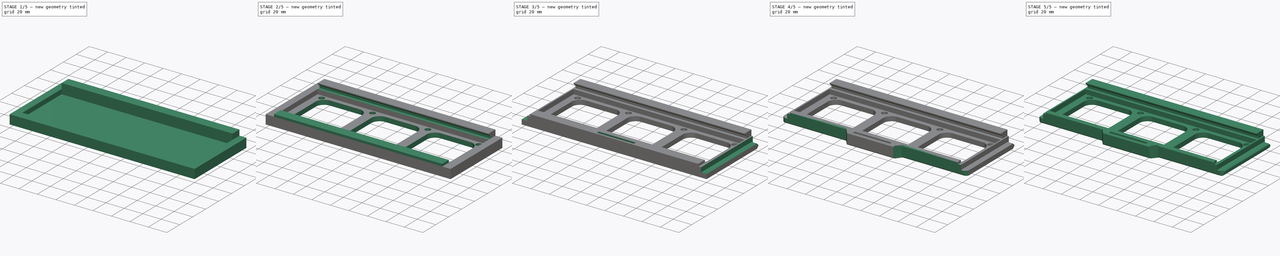
[diagram: build sequence overview — one tinted view per stage of 5, left to right]
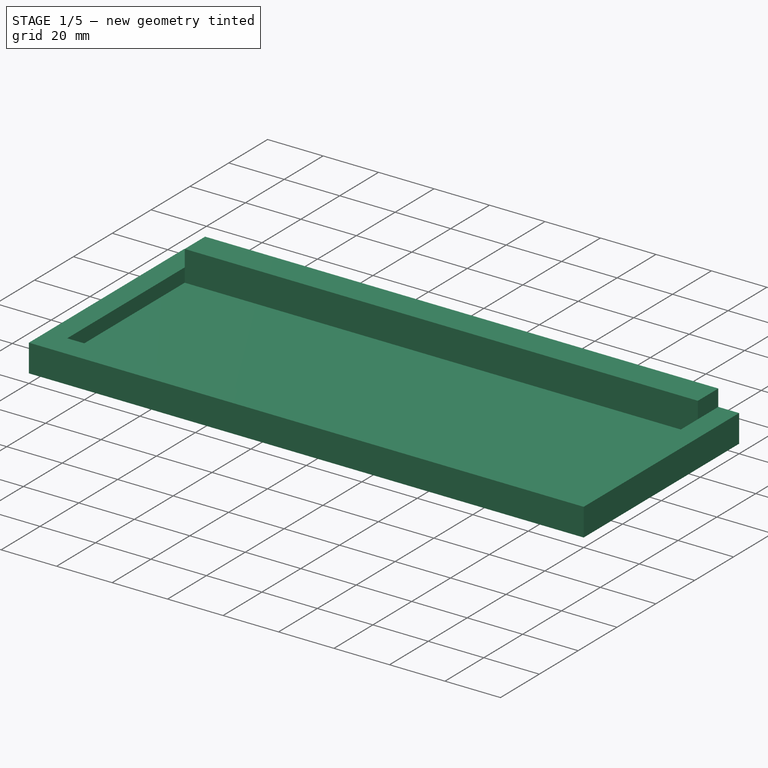
[diagram: stage 1 of 5 — iso view after this stage's code; geometry added in this stage tinted green]
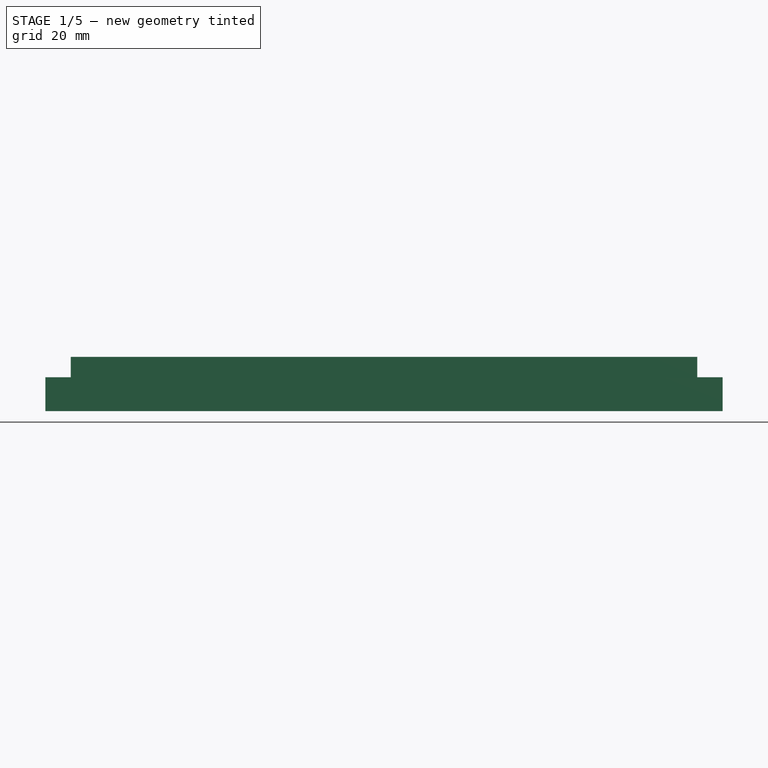
[diagram: stage 1 of 5 — front view after this stage's code; geometry added in this stage tinted green]
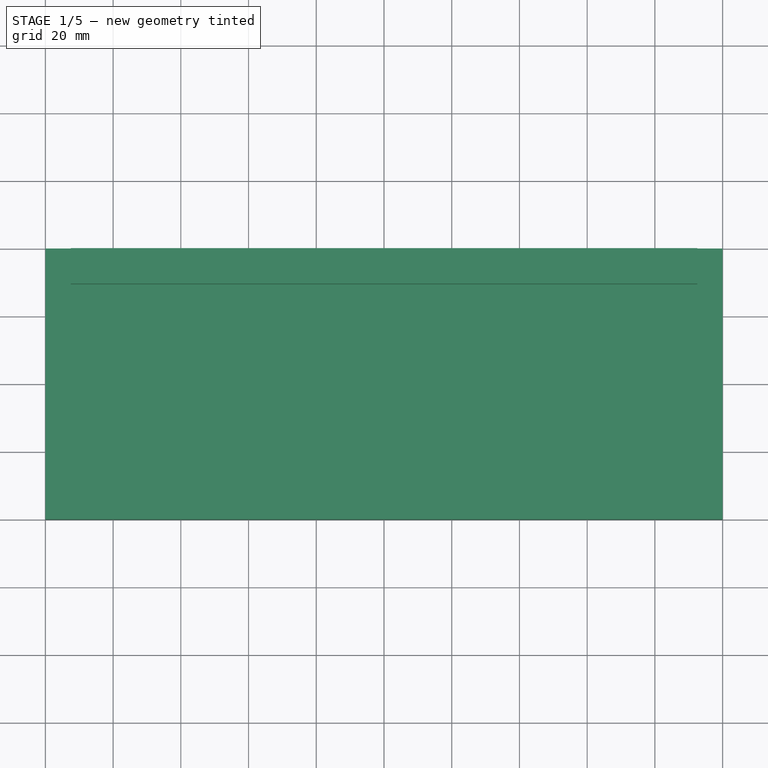
[diagram: stage 1 of 5 — top view after this stage's code; geometry added in this stage tinted green]
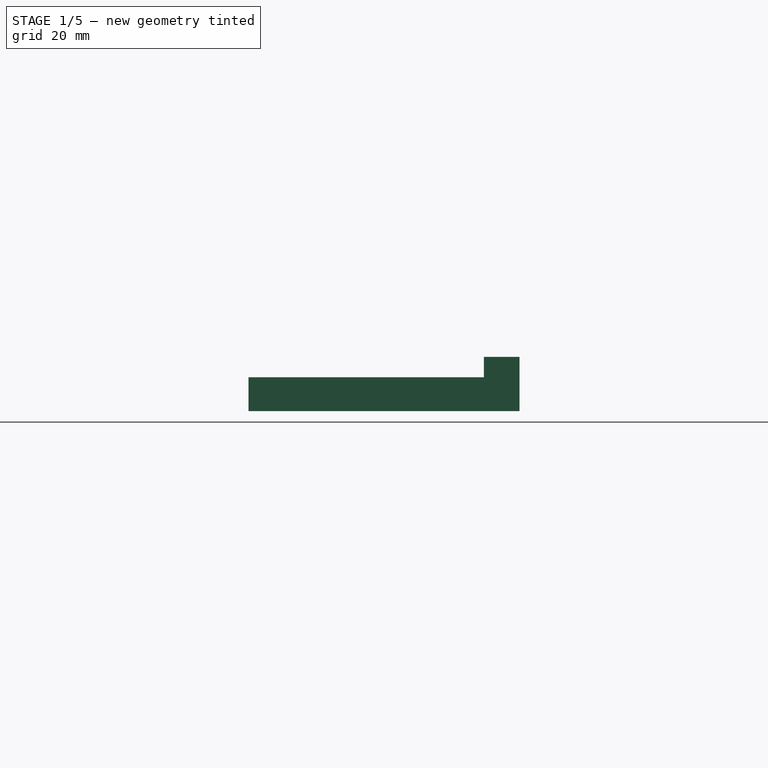
[diagram: stage 1 of 5 — right view after this stage's code; geometry added in this stage tinted green]
FCSTD DOCUMENT  (FreeCAD 1.0R39109 (Git))
Label: case rack v2
License: All rights reserved
objects: Sketcher::SketchObject×10, PartDesign::Chamfer×7, PartDesign::Pocket×6, PartDesign::Pad×4, PartDesign::Body×1
note: 72 computed .brp shape members not serialized (recipe doc carries the construction recipe); baked Part::Feature solids carry a one-line shape summary decoded from their .brp

FEATURE [Sketcher::SketchObject] Sketch
  ArcFitTolerance = 1e-06
  AttachmentSupport = -> [XY_Plane]
  FullyConstrained = true
  MakeInternals = false
  MapMode = 5
  sketch-geometry (4):
    g0: LineSegment StartX=-100 StartY=40 StartZ=0 EndX=-100 EndY=-40 EndZ=0
    g1: LineSegment StartX=-100 StartY=-40 StartZ=0 EndX=100 EndY=-40 EndZ=0
    g2: LineSegment StartX=100 StartY=-40 StartZ=0 EndX=100 EndY=40 EndZ=0
    g3: LineSegment StartX=100 StartY=40 StartZ=0 EndX=-100 EndY=40 EndZ=0
  constraints (10):
    c: Coincident(g0,g1)
    c: Coincident(g1,g2)
    c: Coincident(g2,g3)
    c: Coincident(g3,g0)
    c: Vertical(g2)
    c: Horizontal(g1)
    c: Symmetric(g0,g0,g-1)
    c: DistanceY(g0,g0) = 80
    c: DistanceX(g3,g3) = 200
    c: Symmetric(g0,g2,g-2)
FEATURE [PartDesign::Pad] Pad
  Direction = (0,0,1)
  Length = 5
  Length2 = 10
  Profile = -> Sketch
  ReferenceAxis = -> Sketch [N_Axis]
  Refine = true
  Suppressed = false
  Type = 0
FEATURE [Sketcher::SketchObject] Sketch001
  ArcFitTolerance = 1e-06
  AttachmentSupport = -> [Pad]
  ExternalGeometry = -> [Pad]
  FullyConstrained = true
  MakeInternals = false
  MapMode = 5
  Placement = pos=(0,0,5) rot=(0,0,1;0rad)
  sketch-geometry (8):
    g0: LineSegment StartX=-92.5 StartY=29.5 StartZ=0 EndX=92.5 EndY=29.5 EndZ=0
    g1: LineSegment StartX=100 StartY=40 StartZ=0 EndX=-100 EndY=40 EndZ=0
    g2: LineSegment StartX=-100 StartY=-40 StartZ=0 EndX=100 EndY=-40 EndZ=0
    g3: LineSegment StartX=92.5 StartY=-31 StartZ=0 EndX=-92.5 EndY=-31 EndZ=0
    g4: LineSegment StartX=92.5 StartY=29.5 StartZ=0 EndX=92.5 EndY=-31 EndZ=0
    g5: LineSegment StartX=-92.5 StartY=-31 StartZ=0 EndX=-92.5 EndY=29.5 EndZ=0
    g6: LineSegment StartX=-100 StartY=40 StartZ=0 EndX=-100 EndY=-40 EndZ=0
    g7: LineSegment StartX=100 StartY=40 StartZ=0 EndX=100 EndY=-40 EndZ=0
  constraints (19):
    c: Horizontal(g3)
    c: Vertical(g4)
    c: Coincident(g0,g5)
    c: Coincident(g3,g5)
    c: Coincident(g0,g4)
    c: Coincident(g3,g4)
    c: Coincident(g2,g7)
    c: Coincident(g2,g-4)
    c: Coincident(g1,g7)
    c: Coincident(g1,g-3)
    c: Coincident(g1,g6)
    c: Coincident(g1,g-3)
    c: Coincident(g2,g6)
    c: Coincident(g2,g-4)
    c: Symmetric(g0,g0,g-2)
    c: DistanceY(g5,g5) = 60.5
    c: DistanceX(g0,g0) = 185
    c: DistanceY(g2,g3) = 9
    c: Vertical(g5)
FEATURE [PartDesign::Pad] Pad001
  BaseFeature = -> Pad
  Direction = (0,0,1)
  Length = 5
  Length2 = 10
  Profile = -> Sketch001
  ReferenceAxis = -> Sketch001 [N_Axis]
  Refine = true
  Suppressed = false
  Type = 0
FEATURE [Sketcher::SketchObject] Sketch002
  ArcFitTolerance = 1e-06
  AttachmentSupport = -> [Pad001]
  ExternalGeometry = -> [Pad001]
  FullyConstrained = true
  MakeInternals = false
  MapMode = 5
  Placement = pos=(0,0,10) rot=(0,0,1;0rad)
  sketch-geometry (4):
    g0: LineSegment StartX=-92.5 StartY=29.5 StartZ=0 EndX=92.5 EndY=29.5 EndZ=0
    g1: LineSegment StartX=92.5 StartY=29.5 StartZ=0 EndX=92.5 EndY=40 EndZ=0
    g2: LineSegment StartX=92.5 StartY=40 StartZ=0 EndX=-92.5 EndY=40 EndZ=0
    g3: LineSegment StartX=-92.5 StartY=40 StartZ=0 EndX=-92.5 EndY=29.5 EndZ=0
  constraints (10):
    c: Coincident(g0,g1)
    c: Coincident(g1,g2)
    c: Coincident(g2,g3)
    c: Coincident(g3,g0)
    c: Horizontal(g2)
    c: Vertical(g1)
    c: Vertical(g3)
    c: Coincident(g0,g-4)
    c: PointOnObject(g1,g-3)
    c: Coincident(g0,g-4)
FEATURE [PartDesign::Pad] Pad002
  BaseFeature = -> Pad001
  Direction = (0,0,1)
  Length = 6
  Length2 = 10
  Profile = -> Sketch002
  ReferenceAxis = -> Sketch002 [N_Axis]
  Refine = true
  Suppressed = false
  Type = 0
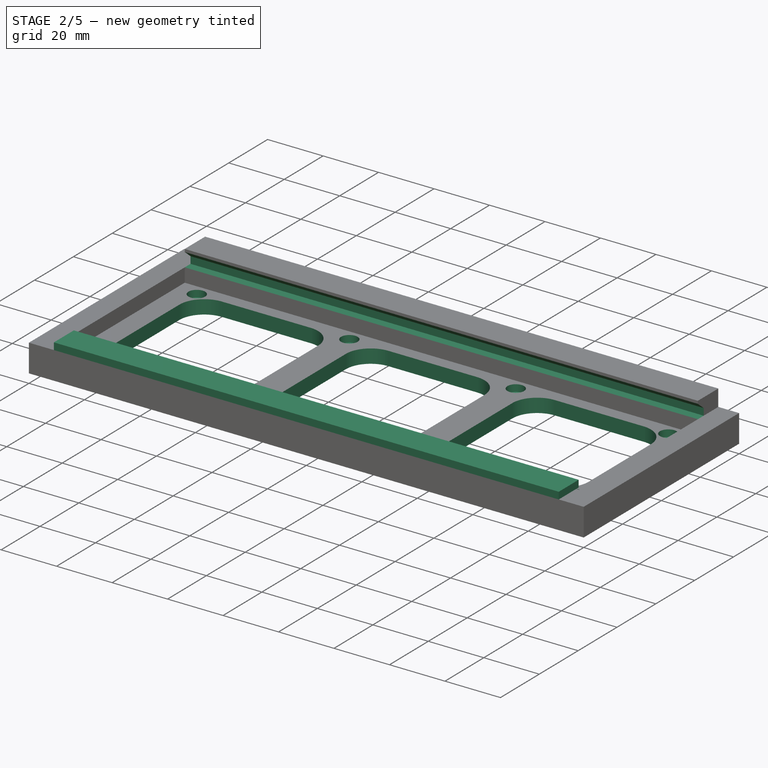
[diagram: stage 2 of 5 — iso view after this stage's code; geometry added in this stage tinted green]
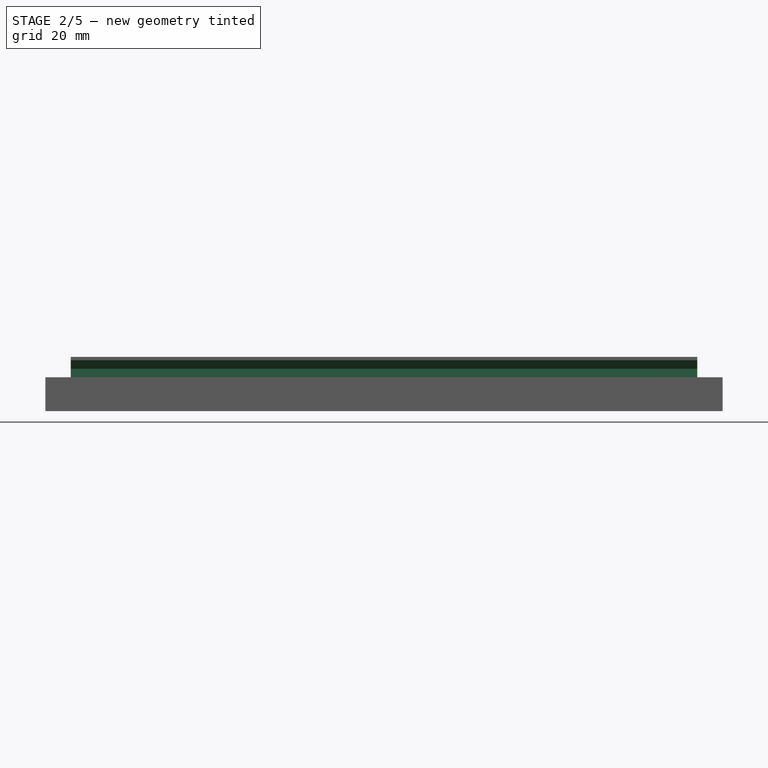
[diagram: stage 2 of 5 — front view after this stage's code; geometry added in this stage tinted green]
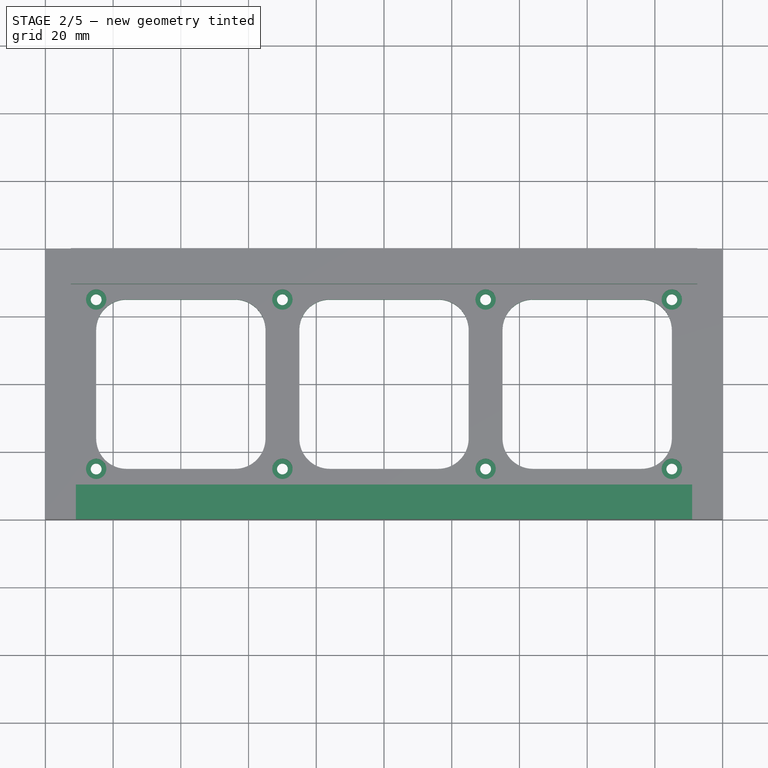
[diagram: stage 2 of 5 — top view after this stage's code; geometry added in this stage tinted green]
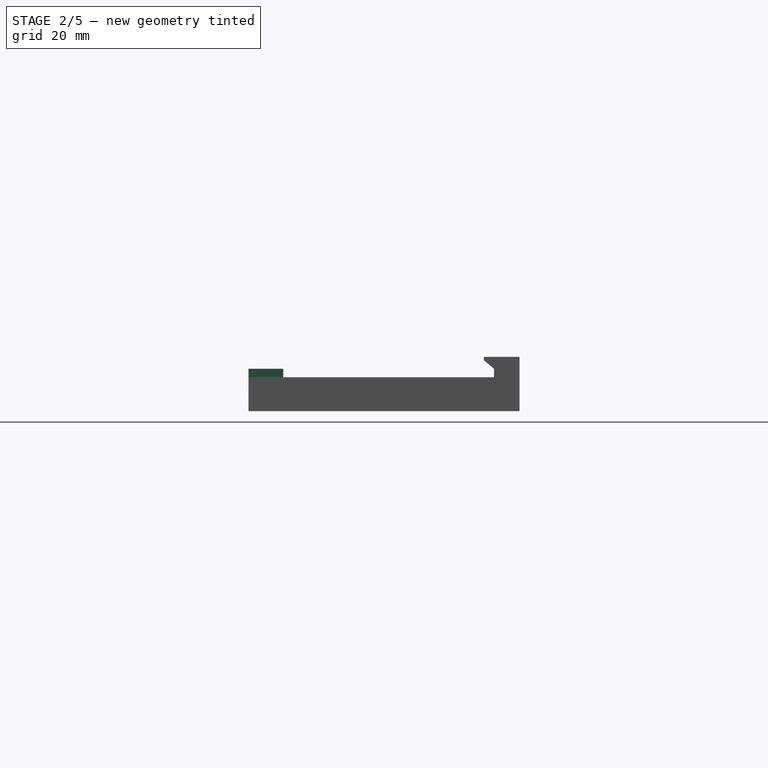
[diagram: stage 2 of 5 — right view after this stage's code; geometry added in this stage tinted green]
FEATURE [Sketcher::SketchObject] Sketch003
  ArcFitTolerance = 1e-06
  AttachmentSupport = -> [Pad002]
  ExternalGeometry = -> [Pad002]
  FullyConstrained = true
  MakeInternals = false
  MapMode = 5
  Placement = pos=(0,0,10) rot=(0,0,1;0rad)
  sketch-geometry (4):
    g0: LineSegment StartX=-91 StartY=-29.75 StartZ=0 EndX=-91 EndY=-40 EndZ=0
    g1: LineSegment StartX=-91 StartY=-40 StartZ=0 EndX=91 EndY=-40 EndZ=0
    g2: LineSegment StartX=91 StartY=-40 StartZ=0 EndX=91 EndY=-29.75 EndZ=0
    g3: LineSegment StartX=91 StartY=-29.75 StartZ=0 EndX=-91 EndY=-29.75 EndZ=0
  constraints (11):
    c: Coincident(g0,g1)
    c: Coincident(g1,g2)
    c: Coincident(g2,g3)
    c: Coincident(g3,g0)
    c: Vertical(g0)
    c: Vertical(g2)
    c: Horizontal(g1)
    c: DistanceY(g0,g0) = 10.25
    c: PointOnObject(g1,g-4)
    c: Symmetric(g0,g2,g-2)
    c: DistanceX(g3,g3) = 182
FEATURE [PartDesign::Pad] Pad003
  BaseFeature = -> Pad002
  Direction = (0,0,1)
  Length = 2.5
  Length2 = 10
  Profile = -> Sketch003
  ReferenceAxis = -> Sketch003 [N_Axis]
  Refine = true
  Suppressed = false
  Type = 0
FEATURE [Sketcher::SketchObject] Sketch004
  ArcFitTolerance = 1e-06
  AttachmentSupport = -> [Pad003]
  ExternalGeometry = -> [Pad003]
  FullyConstrained = true
  MakeInternals = false
  MapMode = 5
  Placement = pos=(-92.5,0,0) rot=(0.57735,-0.57735,-0.57735;2.0944rad)
  sketch-geometry (4):
    g0: LineSegment StartX=-32.5 StartY=12.5 StartZ=0 EndX=-32.5 EndY=10 EndZ=0
    g1: LineSegment StartX=-32.5 StartY=10 StartZ=0 EndX=-29.5 EndY=10 EndZ=0
    g2: LineSegment StartX=-29.5 StartY=10 StartZ=0 EndX=-29.5 EndY=15 EndZ=0
    g3: LineSegment StartX=-29.5 StartY=15 StartZ=0 EndX=-32.5 EndY=12.5 EndZ=0
  constraints (11):
    c: Coincident(g0,g1)
    c: Coincident(g1,g2)
    c: Coincident(g2,g3)
    c: Coincident(g3,g0)
    c: Vertical(g0)
    c: Vertical(g2)
    c: Horizontal(g1)
    c: Coincident(g1,g-3)
    c: DistanceX(g3,g3) = 3
    c: DistanceY(g0,g0) = 2.5
    c: DistanceY(g2,g2) = 5
FEATURE [PartDesign::Pocket] Pocket
  BaseFeature = -> Pad003
  Direction = (1,0,0)
  Length = 5
  Length2 = 5
  Profile = -> Sketch004
  ReferenceAxis = -> Sketch004 [N_Axis]
  Refine = true
  Suppressed = false
  Type = 1
FEATURE [Sketcher::SketchObject] Sketch005
  ArcFitTolerance = 1e-06
  AttachmentSupport = -> [Pocket]
  FullyConstrained = true
  MakeInternals = false
  MapMode = 5
  Placement = pos=(0,0,5) rot=(0,0,1;0rad)
  sketch-geometry (44):
    g0: LineSegment StartX=-25 StartY=16 StartZ=0 EndX=-25 EndY=-16 EndZ=0
    g1: LineSegment StartX=-16 StartY=-25 StartZ=0 EndX=16 EndY=-25 EndZ=0
    g2: LineSegment StartX=25 StartY=-16 StartZ=0 EndX=25 EndY=16 EndZ=0
    g3: LineSegment StartX=16 StartY=25 StartZ=0 EndX=-16 EndY=25 EndZ=0
    g4: ArcOfCircle CenterX=-16 CenterY=16 CenterZ=0 NormalX=0 NormalY=0 NormalZ=1 AngleXU=0 Radius=9 StartAngle=1.5708 EndAngle=3.14159
    g5: ArcOfCircle CenterX=-16 CenterY=-16 CenterZ=0 NormalX=0 NormalY=0 NormalZ=1 AngleXU=0 Radius=9 StartAngle=3.14159 EndAngle=4.71239
    g6: ArcOfCircle CenterX=16 CenterY=-16 CenterZ=0 NormalX=0 NormalY=0 NormalZ=1 AngleXU=0 Radius=9 StartAngle=4.71239 EndAngle=6.28319
    g7: ArcOfCircle CenterX=16 CenterY=16 CenterZ=0 NormalX=0 NormalY=0 NormalZ=1 AngleXU=0 Radius=9 StartAngle=0 EndAngle=1.5708
    g8: GeomPoint [constr] X=-25 Y=25 Z=0
    g9: GeomPoint [constr] X=25 Y=-25 Z=0
    g10: LineSegment StartX=-85 StartY=16 StartZ=0 EndX=-85 EndY=-16 EndZ=0
    g11: LineSegment StartX=-76 StartY=-25 StartZ=0 EndX=-44 EndY=-25 EndZ=0
    g12: LineSegment StartX=-35 StartY=-16 StartZ=0 EndX=-35 EndY=16 EndZ=0
    g13: LineSegment StartX=-44 StartY=25 StartZ=0 EndX=-76 EndY=25 EndZ=0
    g14: ArcOfCircle CenterX=-76 CenterY=16 CenterZ=0 NormalX=0 NormalY=0 NormalZ=1 AngleXU=0 Radius=9 StartAngle=1.5708 EndAngle=3.14159
    g15: ArcOfCircle CenterX=-76 CenterY=-16 CenterZ=0 NormalX=0 NormalY=0 NormalZ=1 AngleXU=0 Radius=9 StartAngle=3.14159 EndAngle=4.71239
    g16: ArcOfCircle CenterX=-44 CenterY=-16 CenterZ=0 NormalX=0 NormalY=0 NormalZ=1 AngleXU=0 Radius=9 StartAngle=4.71239 EndAngle=6.28319
    g17: ArcOfCircle CenterX=-44 CenterY=16 CenterZ=0 NormalX=0 NormalY=0 NormalZ=1 AngleXU=0 Radius=9 StartAngle=0 EndAngle=1.5708
    g18: GeomPoint [constr] X=-85 Y=25 Z=0
    g19: GeomPoint [constr] X=-35 Y=-25 Z=0
    g20: LineSegment StartX=35 StartY=16 StartZ=0 EndX=35 EndY=-16 EndZ=0
    g21: LineSegment StartX=44 StartY=-25 StartZ=0 EndX=76 EndY=-25 EndZ=0
    g22: LineSegment StartX=85 StartY=-16 StartZ=0 EndX=85 EndY=16 EndZ=0
    g23: LineSegment StartX=76 StartY=25 StartZ=0 EndX=44 EndY=25 EndZ=0
    g24: ArcOfCircle CenterX=44 CenterY=16 CenterZ=0 NormalX=0 NormalY=0 NormalZ=1 AngleXU=0 Radius=9 StartAngle=1.5708 EndAngle=3.14159
    g25: ArcOfCircle CenterX=44 CenterY=-16 CenterZ=0 NormalX=0 NormalY=0 NormalZ=1 AngleXU=0 Radius=9 StartAngle=3.14159 EndAngle=4.71239
    g26: ArcOfCircle CenterX=76 CenterY=-16 CenterZ=0 NormalX=0 NormalY=0 NormalZ=1 AngleXU=0 Radius=9 StartAngle=4.71239 EndAngle=6.28319
    g27: ArcOfCircle CenterX=76 CenterY=16 CenterZ=0 NormalX=0 NormalY=0 NormalZ=1 AngleXU=0 Radius=9 StartAngle=0 EndAngle=1.5708
    g28: GeomPoint [constr] X=35 Y=25 Z=0
    g29: GeomPoint [constr] X=85 Y=-25 Z=0
    g30: LineSegment [constr] StartX=-85 StartY=25 StartZ=0 EndX=-85 EndY=-25 EndZ=0
    g31: LineSegment [constr] StartX=-85 StartY=-25 StartZ=0 EndX=85 EndY=-25 EndZ=0
    g32: LineSegment [constr] StartX=85 StartY=-25 StartZ=0 EndX=85 EndY=25 EndZ=0
    g33: LineSegment [constr] StartX=85 StartY=25 StartZ=0 EndX=-85 EndY=25 EndZ=0
    g34: LineSegment [constr] StartX=-30 StartY=25 StartZ=0 EndX=-30 EndY=-25 EndZ=0
    g35: LineSegment [constr] StartX=30 StartY=25 StartZ=0 EndX=30 EndY=-25 EndZ=0
    g36: Circle CenterX=-85 CenterY=-25 CenterZ=0 NormalX=0 NormalY=0 NormalZ=1 AngleXU=0 Radius=1.6
    g37: Circle CenterX=-30 CenterY=-25 CenterZ=0 NormalX=0 NormalY=0 NormalZ=1 AngleXU=0 Radius=1.6
    g38: Circle CenterX=30 CenterY=-25 CenterZ=0 NormalX=0 NormalY=0 NormalZ=1 AngleXU=0 Radius=1.6
    g39: Circle CenterX=85 CenterY=-25 CenterZ=0 NormalX=0 NormalY=0 NormalZ=1 AngleXU=0 Radius=1.6
    g40: Circle CenterX=85 CenterY=25 CenterZ=0 NormalX=0 NormalY=0 NormalZ=1 AngleXU=0 Radius=1.6
    g41: Circle CenterX=30 CenterY=25 CenterZ=0 NormalX=0 NormalY=0 NormalZ=1 AngleXU=0 Radius=1.6
    g42: Circle CenterX=-30 CenterY=25 CenterZ=0 NormalX=0 NormalY=0 NormalZ=1 AngleXU=0 Radius=1.6
    g43: Circle CenterX=-85 CenterY=25 CenterZ=0 NormalX=0 NormalY=0 NormalZ=1 AngleXU=0 Radius=1.6
  constraints (103):
    c: Tangent(g0,g4) = -1.5708
    c: Tangent(g0,g5) = -1.5708
    c: Tangent(g1,g5) = -1.5708
    c: Tangent(g1,g6) = -1.5708
    c: Tangent(g2,g6) = -1.5708
    c: Tangent(g2,g7) = -1.5708
    c: Tangent(g3,g7) = -1.5708
    c: Tangent(g3,g4) = -1.5708
    c: Vertical(g0)
    c: Vertical(g2)
    c: Horizontal(g1)
    c: Horizontal(g3)
    c: Equal(g4,g5)
    c: Equal(g5,g6)
    c: PointOnObject(g8,g0)
    c: PointOnObject(g8,g3)
    c: PointOnObject(g9,g1)
    c: PointOnObject(g9,g2)
    c: Tangent(g10,g14) = -1.5708
    c: Tangent(g10,g15) = -1.5708
    c: Tangent(g11,g15) = -1.5708
    c: Tangent(g11,g16) = -1.5708
    c: Tangent(g12,g16) = -1.5708
    c: Tangent(g12,g17) = -1.5708
    c: Tangent(g13,g17) = -1.5708
    c: Tangent(g13,g14) = -1.5708
    c: Vertical(g10)
    c: Vertical(g12)
    c: Horizontal(g11)
    c: Horizontal(g13)
    c: Equal(g14,g15)
    c: Equal(g15,g16)
    c: Equal(g16,g17)
    c: PointOnObject(g18,g10)
    c: PointOnObject(g18,g13)
    c: PointOnObject(g19,g11)
    c: PointOnObject(g19,g12)
    c: Tangent(g20,g24) = -1.5708
    c: Tangent(g20,g25) = -1.5708
    c: Tangent(g21,g25) = -1.5708
    c: Tangent(g21,g26) = -1.5708
    c: Tangent(g22,g26) = -1.5708
    c: Tangent(g22,g27) = -1.5708
    c: Tangent(g23,g27) = -1.5708
    c: Tangent(g23,g24) = -1.5708
    c: Vertical(g20)
    c: Vertical(g22)
    c: Horizontal(g21)
    c: Horizontal(g23)
    c: Equal(g24,g25)
    c: Equal(g25,g26)
    c: Equal(g26,g27)
    c: PointOnObject(g28,g20)
    c: PointOnObject(g28,g23)
    c: PointOnObject(g29,g21)
    c: PointOnObject(g29,g22)
    c: Coincident(g30,g31)
    c: Coincident(g31,g32)
    c: Coincident(g32,g33)
    c: Coincident(g33,g30)
    c: Vertical(g30)
    c: Vertical(g32)
    c: Horizontal(g31)
    c: Horizontal(g33)
    c: PointOnObject(g21,g31)
    c: PointOnObject(g1,g31)
    c: PointOnObject(g11,g31)
    c: PointOnObject(g22,g32)
    c: PointOnObject(g3,g33)
    c: PointOnObject(g23,g33)
    c: Equal(g16,g5)
    c: Equal(g5,g25)
    c: Symmetric(g32,g18,g-2)
    c: Radius(g17) = 9
    c: Symmetric(g0,g2,g-2)
    c: Symmetric(g18,g30,g-1)
    c: Equal(g13,g23)
    c: Equal(g23,g3)
    c: DistanceX(g31,g31) = 170
    c: DistanceX(g0,g2) = 50
    c: DistanceY(g11,g13) = 50
    c: PointOnObject(g34,g33)
    c: PointOnObject(g34,g31)
    c: PointOnObject(g35,g33)
    c: PointOnObject(g35,g31)
    c: Symmetric(g21,g1,g35)
    c: Symmetric(g13,g3,g34)
    c: Coincident(g36,g30)
    c: Coincident(g37,g34)
    c: Coincident(g38,g35)
    c: Coincident(g39,g29)
    c: Coincident(g40,g32)
    c: Coincident(g41,g35)
    c: Coincident(g42,g34)
    c: Coincident(g43,g18)
    c: Equal(g43,g36)
    c: Equal(g36,g37)
    c: Equal(g37,g42)
    c: Equal(g42,g41)
    c: Equal(g41,g38)
    c: Equal(g38,g39)
    c: Equal(g39,g40)
    c: Radius(g41) = 1.6
FEATURE [PartDesign::Pocket] Pocket001
  BaseFeature = -> Pocket
  Direction = (0,0,-1)
  Length = 5
  Length2 = 5
  Profile = -> Sketch005
  ReferenceAxis = -> Sketch005 [N_Axis]
  Refine = true
  Suppressed = false
  Type = 0
FEATURE [Sketcher::SketchObject] Sketch006
  ArcFitTolerance = 1e-06
  AttachmentSupport = -> [Pocket001]
  ExternalGeometry = -> [Pocket001]
  FullyConstrained = true
  MakeInternals = false
  MapMode = 5
  Placement = pos=(0,0,5) rot=(0,0,1;0rad)
  sketch-geometry (8):
    g0: Circle CenterX=-85 CenterY=25 CenterZ=0 NormalX=0 NormalY=0 NormalZ=1 AngleXU=0 Radius=3
    g1: Circle CenterX=-85 CenterY=-25 CenterZ=0 NormalX=0 NormalY=0 NormalZ=1 AngleXU=0 Radius=3
    g2: Circle CenterX=-30 CenterY=-25 CenterZ=0 NormalX=0 NormalY=0 NormalZ=1 AngleXU=0 Radius=3
    g3: Circle CenterX=-30 CenterY=25 CenterZ=0 NormalX=0 NormalY=0 NormalZ=1 AngleXU=0 Radius=3
    g4: Circle CenterX=30 CenterY=25 CenterZ=0 NormalX=0 NormalY=0 NormalZ=1 AngleXU=0 Radius=3
    g5: Circle CenterX=30 CenterY=-25 CenterZ=0 NormalX=0 NormalY=0 NormalZ=1 AngleXU=0 Radius=3
    g6: Circle CenterX=85 CenterY=-25 CenterZ=0 NormalX=0 NormalY=0 NormalZ=1 AngleXU=0 Radius=3
    g7: Circle CenterX=85 CenterY=25 CenterZ=0 NormalX=0 NormalY=0 NormalZ=1 AngleXU=0 Radius=3
  constraints (16):
    c: Coincident(g0,g-3)
    c: Coincident(g1,g-4)
    c: Coincident(g2,g-5)
    c: Coincident(g3,g-6)
    c: Coincident(g4,g-7)
    c: Coincident(g5,g-8)
    c: Coincident(g6,g-9)
    c: Coincident(g7,g-10)
    c: Equal(g7,g6)
    c: Equal(g6,g5)
    c: Equal(g5,g4)
    c: Equal(g4,g3)
    c: Equal(g3,g2)
    c: Equal(g2,g1)
    c: Equal(g1,g0)
    c: Radius(g3) = 3
FEATURE [PartDesign::Pocket] Pocket002
  BaseFeature = -> Pocket001
  Direction = (0,0,-1)
  Length = 2.5
  Length2 = 5
  Profile = -> Sketch006
  ReferenceAxis = -> Sketch006 [N_Axis]
  Refine = true
  Suppressed = false
  Type = 0
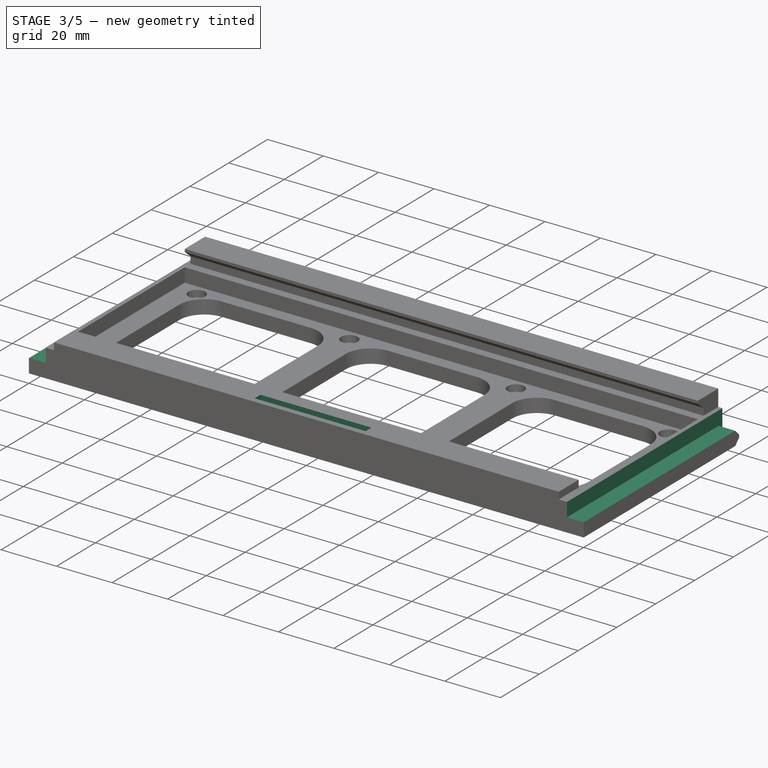
[diagram: stage 3 of 5 — iso view after this stage's code; geometry added in this stage tinted green]
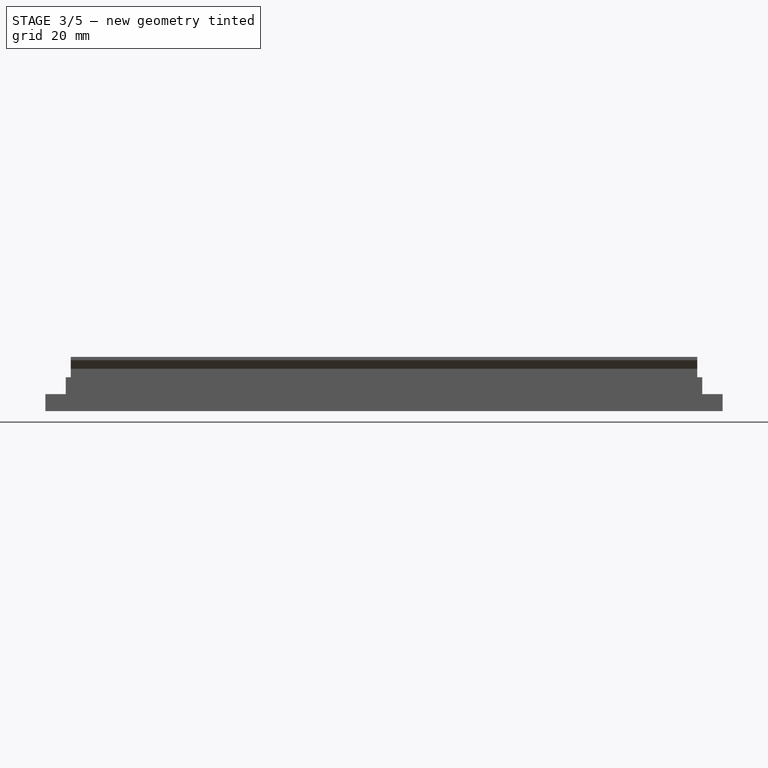
[diagram: stage 3 of 5 — front view after this stage's code; geometry added in this stage tinted green]
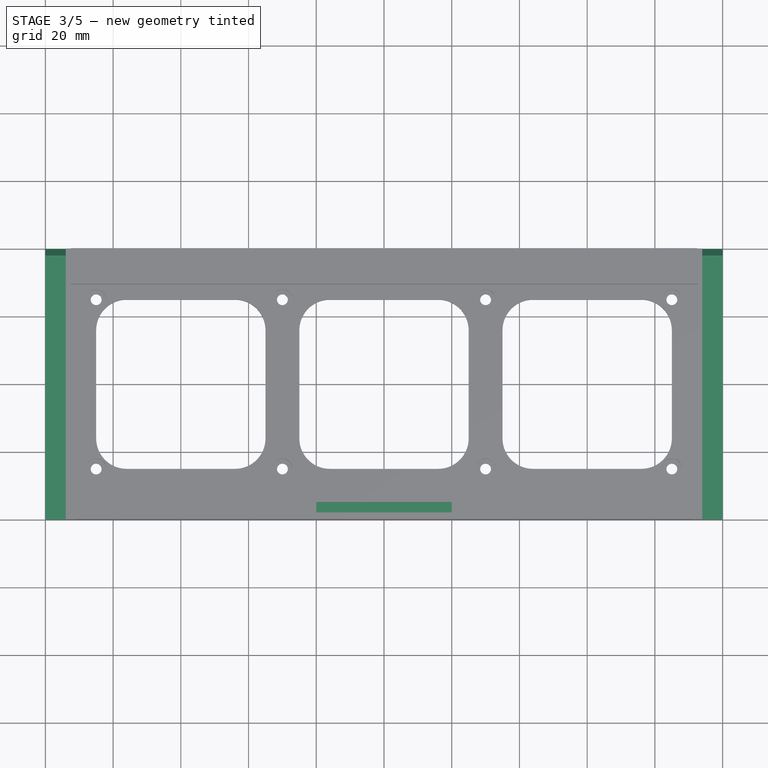
[diagram: stage 3 of 5 — top view after this stage's code; geometry added in this stage tinted green]
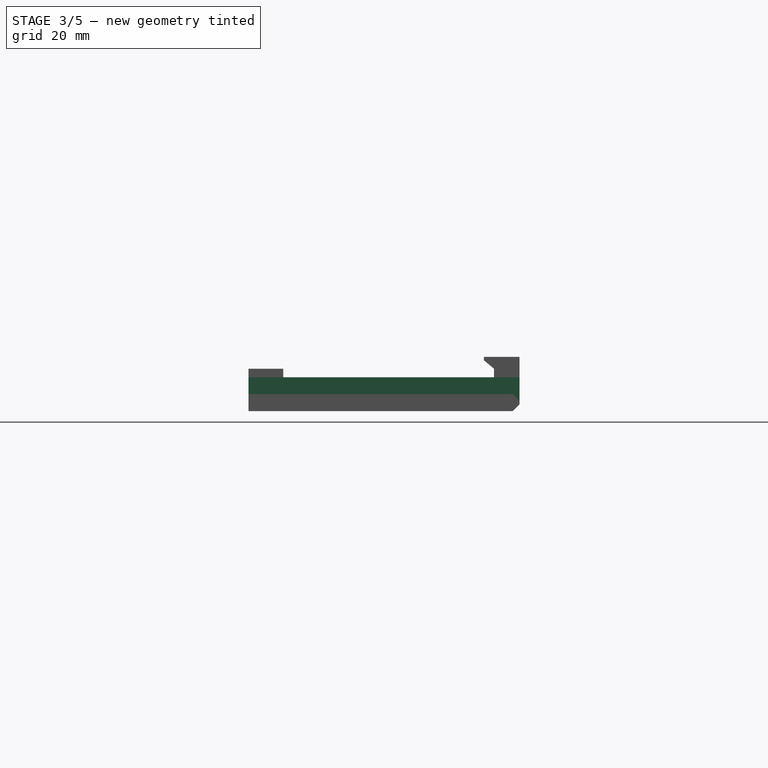
[diagram: stage 3 of 5 — right view after this stage's code; geometry added in this stage tinted green]
FEATURE [Sketcher::SketchObject] Sketch007
  ArcFitTolerance = 1e-06
  AttachmentSupport = -> [Pocket002]
  ExternalGeometry = -> [Pocket002]
  FullyConstrained = true
  MakeInternals = false
  MapMode = 5
  Placement = pos=(0,0,10) rot=(0,0,1;0rad)
  sketch-geometry (8):
    g0: LineSegment StartX=-100 StartY=40 StartZ=0 EndX=-100 EndY=-40 EndZ=0
    g1: LineSegment StartX=-100 StartY=-40 StartZ=0 EndX=-94 EndY=-40 EndZ=0
    g2: LineSegment StartX=-94 StartY=-40 StartZ=0 EndX=-94 EndY=40 EndZ=0
    g3: LineSegment StartX=-94 StartY=40 StartZ=0 EndX=-100 EndY=40 EndZ=0
    g4: LineSegment StartX=94 StartY=40 StartZ=0 EndX=94 EndY=-40 EndZ=0
    g5: LineSegment StartX=94 StartY=-40 StartZ=0 EndX=100 EndY=-40 EndZ=0
    g6: LineSegment StartX=100 StartY=-40 StartZ=0 EndX=100 EndY=40 EndZ=0
    g7: LineSegment StartX=100 StartY=40 StartZ=0 EndX=94 EndY=40 EndZ=0
  constraints (20):
    c: Coincident(g0,g1)
    c: Coincident(g1,g2)
    c: Coincident(g2,g3)
    c: Coincident(g3,g0)
    c: Vertical(g2)
    c: Horizontal(g1)
    c: Horizontal(g3)
    c: Coincident(g4,g5)
    c: Coincident(g5,g6)
    c: Coincident(g6,g7)
    c: Coincident(g7,g4)
    c: Vertical(g4)
    c: Horizontal(g5)
    c: Horizontal(g7)
    c: Equal(g7,g3)
    c: DistanceX(g3,g3) = 6
    c: Coincident(g0,g-3)
    c: Coincident(g0,g-4)
    c: Coincident(g6,g-5)
    c: Coincident(g5,g-6)
FEATURE [PartDesign::Pocket] Pocket003
  BaseFeature = -> Pocket002
  Direction = (0,0,-1)
  Length = 5
  Length2 = 5
  Profile = -> Sketch007
  ReferenceAxis = -> Sketch007 [N_Axis]
  Refine = true
  Suppressed = false
  Type = 0
FEATURE [PartDesign::Chamfer] Chamfer
  Angle = 45
  Base = -> Pocket003 [Edge49,Edge2,Edge41]
  BaseFeature = -> Pocket003
  ChamferType = 0
  FlipDirection = false
  Refine = true
  Size = 2
  Size2 = 1
  SupportTransform = false
  Suppressed = false
  UseAllEdges = false
FEATURE [Sketcher::SketchObject] Sketch008
  ArcFitTolerance = 1e-06
  AttachmentSupport = -> [Chamfer]
  ExternalGeometry = -> [Chamfer]
  FullyConstrained = true
  MakeInternals = false
  MapMode = 5
  Placement = pos=(0,0,12.5) rot=(0,0,1;0rad)
  sketch-geometry (4):
    g0: LineSegment StartX=-20 StartY=-35 StartZ=0 EndX=-20 EndY=-38 EndZ=0
    g1: LineSegment StartX=-20 StartY=-38 StartZ=0 EndX=20 EndY=-38 EndZ=0
    g2: LineSegment StartX=20 StartY=-38 StartZ=0 EndX=20 EndY=-35 EndZ=0
    g3: LineSegment StartX=20 StartY=-35 StartZ=0 EndX=-20 EndY=-35 EndZ=0
  constraints (11):
    c: Coincident(g0,g1)
    c: Coincident(g1,g2)
    c: Coincident(g2,g3)
    c: Coincident(g3,g0)
    c: Vertical(g0)
    c: Vertical(g2)
    c: Horizontal(g1)
    c: Symmetric(g0,g2,g-2)
    c: DistanceY(g0,g0) = 3
    c: DistanceY(g-3,g1) = 2
    c: DistanceX(g3,g3) = 40
FEATURE [PartDesign::Pocket] Pocket004
  BaseFeature = -> Chamfer
  Direction = (0,0,-1)
  Length = 5
  Length2 = 5
  Profile = -> Sketch008
  ReferenceAxis = -> Sketch008 [N_Axis]
  Refine = true
  Suppressed = false
  Type = 0
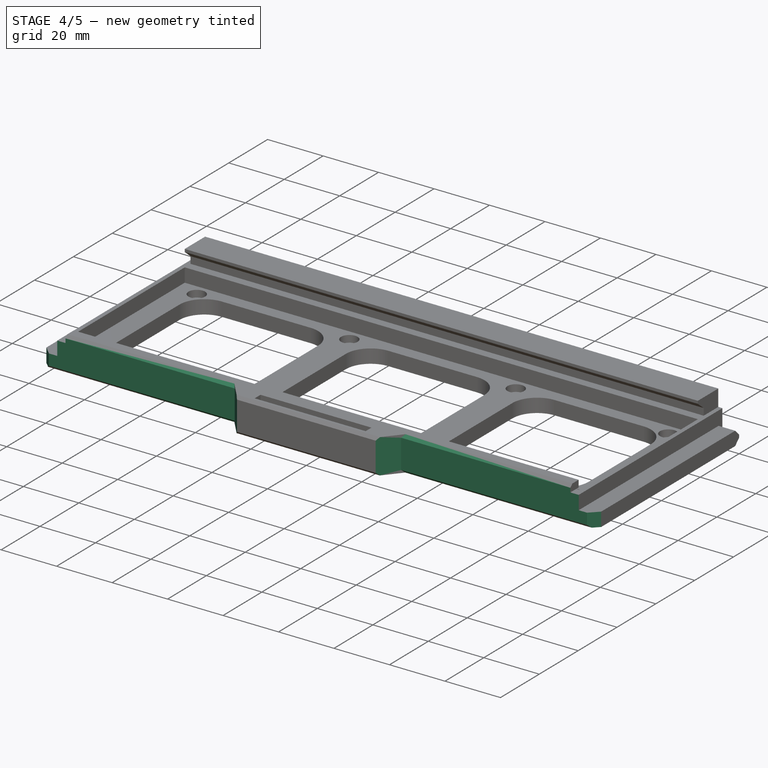
[diagram: stage 4 of 5 — iso view after this stage's code; geometry added in this stage tinted green]
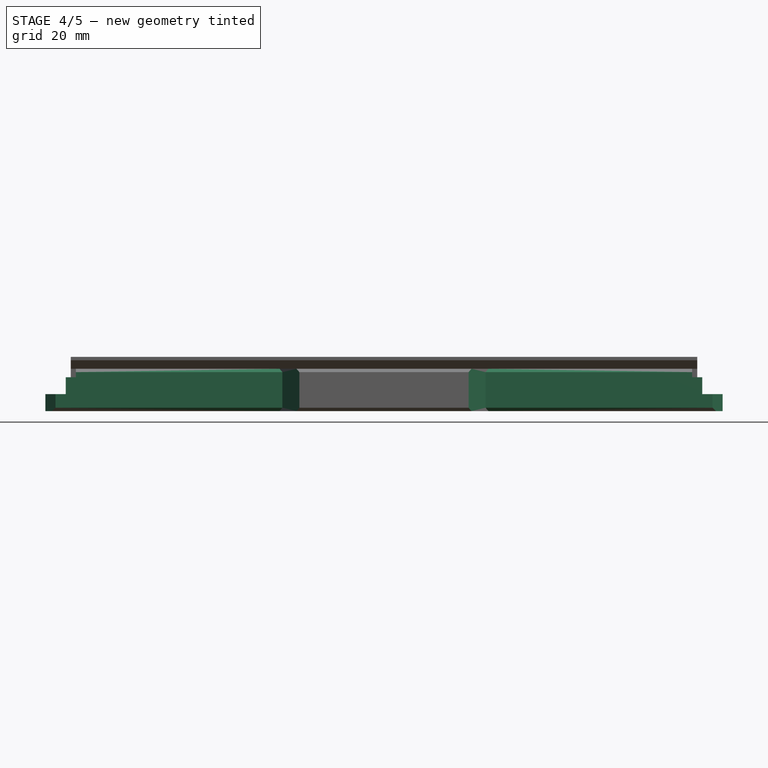
[diagram: stage 4 of 5 — front view after this stage's code; geometry added in this stage tinted green]
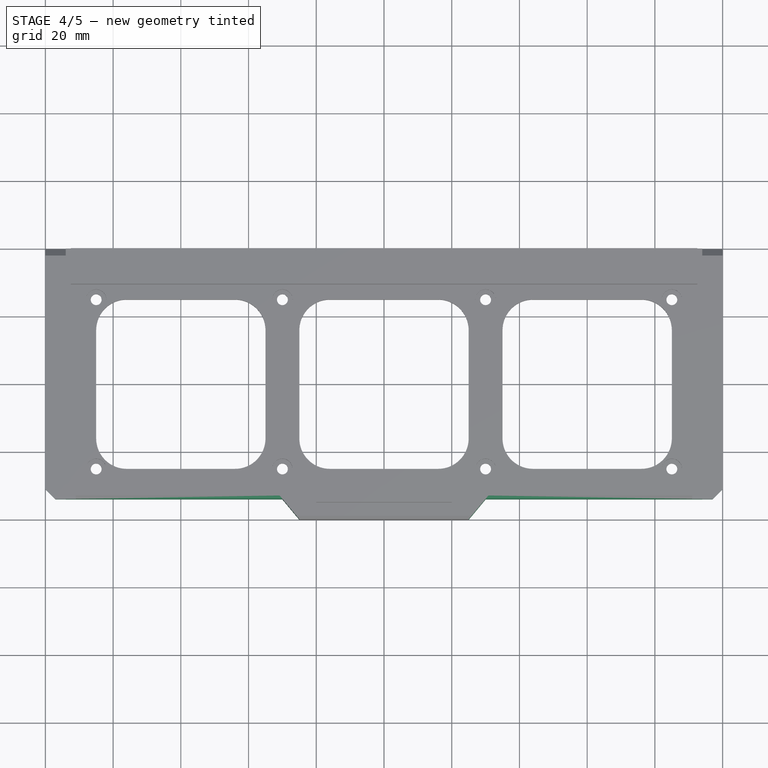
[diagram: stage 4 of 5 — top view after this stage's code; geometry added in this stage tinted green]
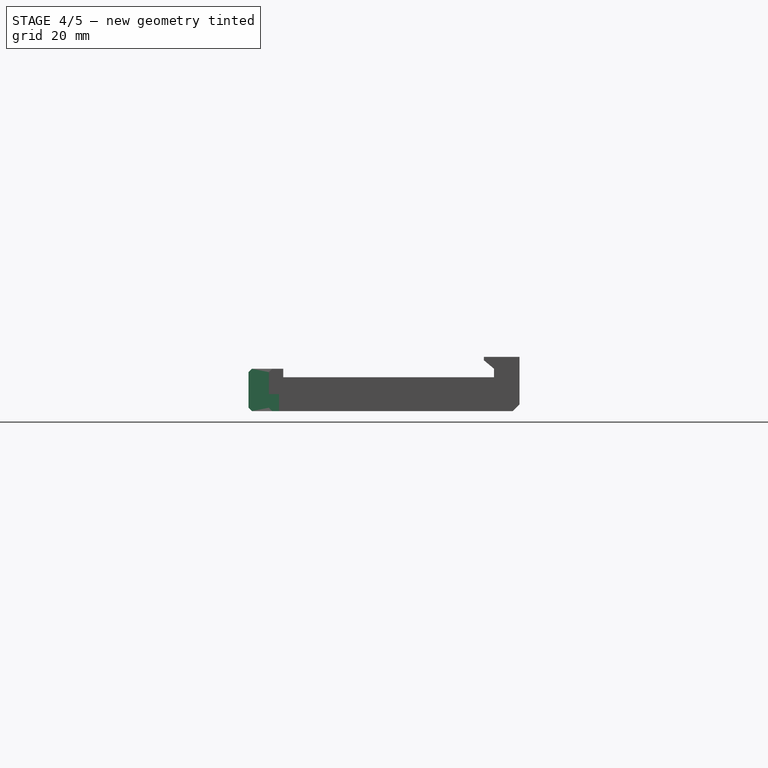
[diagram: stage 4 of 5 — right view after this stage's code; geometry added in this stage tinted green]
FEATURE [Sketcher::SketchObject] Sketch009
  ArcFitTolerance = 1e-06
  AttachmentSupport = -> [Pocket004]
  ExternalGeometry = -> [Pocket004]
  FullyConstrained = true
  MakeInternals = false
  MapMode = 5
  Placement = pos=(0,0,12.5) rot=(0,0,1;0rad)
  sketch-geometry (8):
    g0: LineSegment StartX=-100 StartY=-34 StartZ=0 EndX=-100 EndY=-40 EndZ=0
    g1: LineSegment StartX=-100 StartY=-40 StartZ=0 EndX=-25 EndY=-40 EndZ=0
    g2: LineSegment StartX=-25 StartY=-40 StartZ=0 EndX=-30 EndY=-34 EndZ=0
    g3: LineSegment StartX=-30 StartY=-34 StartZ=0 EndX=-100 EndY=-34 EndZ=0
    g4: LineSegment StartX=30 StartY=-34 StartZ=0 EndX=25 EndY=-40 EndZ=0
    g5: LineSegment StartX=25 StartY=-40 StartZ=0 EndX=100 EndY=-40 EndZ=0
    g6: LineSegment StartX=100 StartY=-40 StartZ=0 EndX=100 EndY=-34 EndZ=0
    g7: LineSegment StartX=100 StartY=-34 StartZ=0 EndX=30 EndY=-34 EndZ=0
  constraints (22):
    c: Coincident(g0,g1)
    c: Coincident(g1,g2)
    c: Coincident(g2,g3)
    c: Coincident(g3,g0)
    c: Vertical(g0)
    c: Horizontal(g1)
    c: Horizontal(g3)
    c: Coincident(g4,g5)
    c: Coincident(g5,g6)
    c: Coincident(g6,g7)
    c: Coincident(g7,g4)
    c: Vertical(g6)
    c: Horizontal(g5)
    c: Horizontal(g7)
    c: Coincident(g5,g-4)
    c: Coincident(g0,g-3)
    c: Equal(g3,g7)
    c: DistanceX(g3,g3) = 70
    c: DistanceX(g1,g1) = 75
    c: DistanceY(g0,g0) = 6
    c: Equal(g6,g0)
    c: Equal(g5,g1)
FEATURE [PartDesign::Pocket] Pocket005
  BaseFeature = -> Pocket004
  Direction = (0,0,-1)
  Length = 5
  Length2 = 5
  Profile = -> Sketch009
  ReferenceAxis = -> Sketch009 [N_Axis]
  Refine = true
  Suppressed = false
  Type = 1
FEATURE [PartDesign::Chamfer] Chamfer001
  Angle = 45
  Base = -> Pocket005 [Edge65,Edge47]
  BaseFeature = -> Pocket005
  ChamferType = 0
  FlipDirection = false
  Refine = true
  Size = 3
  Size2 = 1
  SupportTransform = false
  Suppressed = false
  UseAllEdges = false
FEATURE [PartDesign::Chamfer] Chamfer002
  Angle = 45
  Base = -> Chamfer001 [Edge73,Edge9,Edge57,Edge4]
  BaseFeature = -> Chamfer001
  ChamferType = 0
  FlipDirection = false
  Refine = true
  Size = 1
  Size2 = 1
  SupportTransform = false
  Suppressed = false
  UseAllEdges = false
FEATURE [PartDesign::Chamfer] Chamfer003
  Angle = 45
  Base = -> Chamfer002 [Edge67,Edge8]
  BaseFeature = -> Chamfer002
  ChamferType = 0
  FlipDirection = false
  Refine = true
  Size = 1
  Size2 = 1
  SupportTransform = false
  Suppressed = false
  UseAllEdges = false
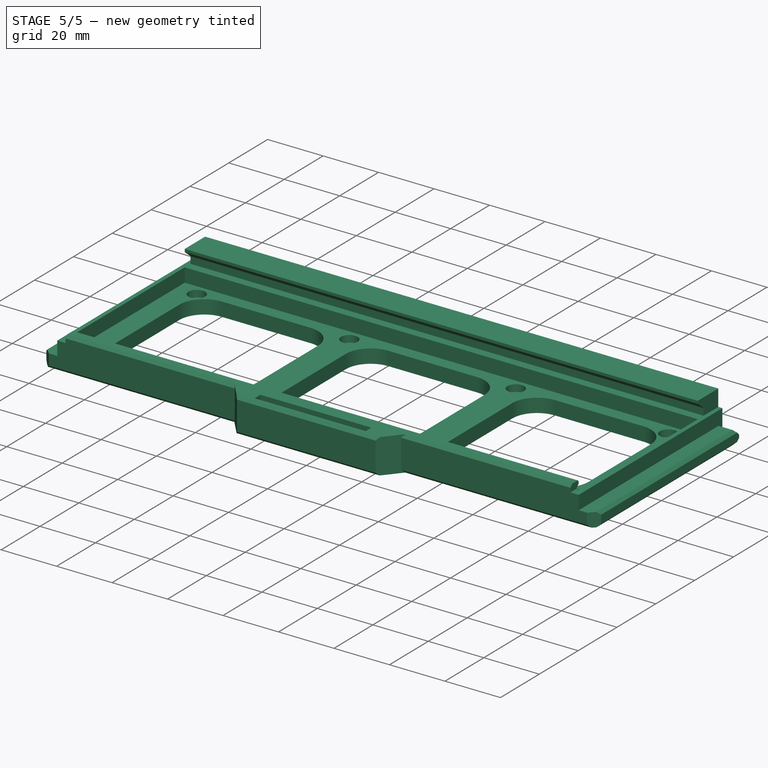
[diagram: stage 5 of 5 — iso view after this stage's code; geometry added in this stage tinted green]
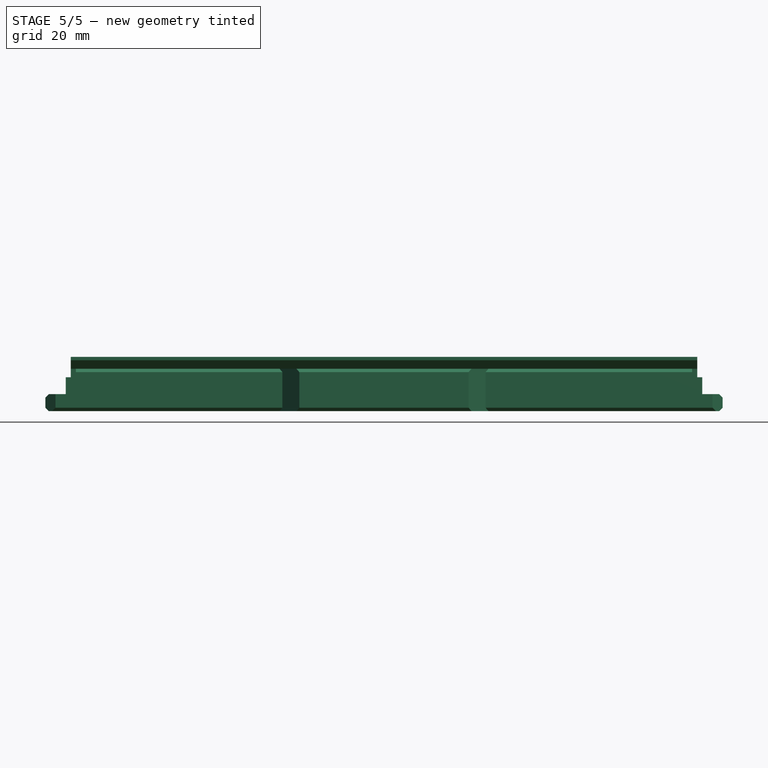
[diagram: stage 5 of 5 — front view after this stage's code; geometry added in this stage tinted green]
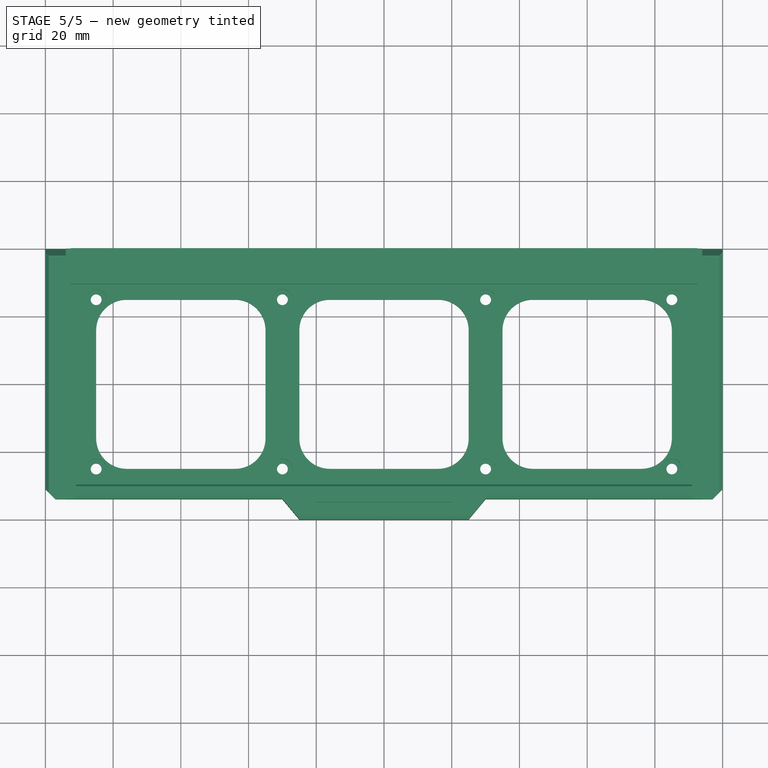
[diagram: stage 5 of 5 — top view after this stage's code; geometry added in this stage tinted green]
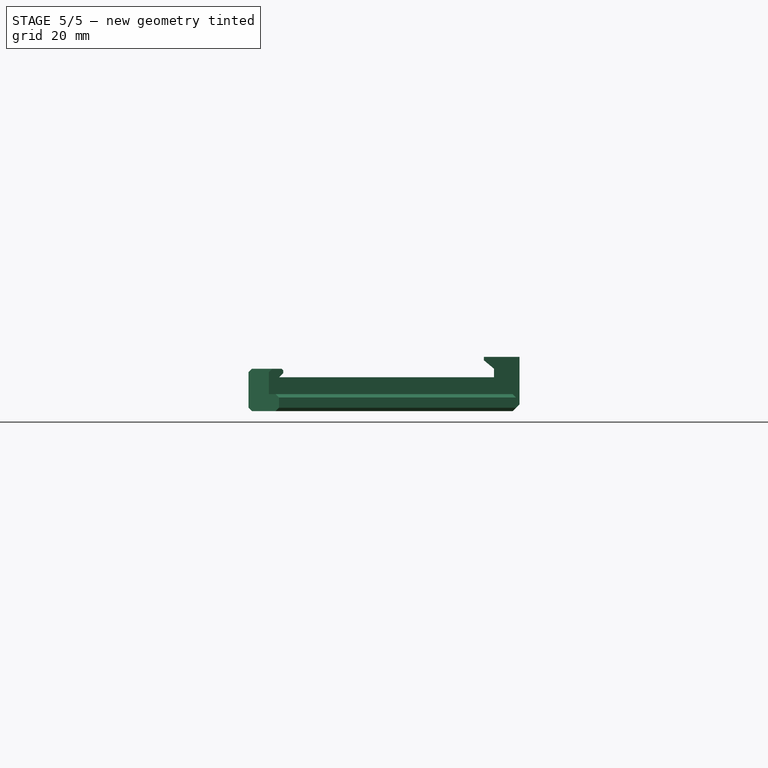
[diagram: stage 5 of 5 — right view after this stage's code; geometry added in this stage tinted green]
FEATURE [PartDesign::Chamfer] Chamfer004
  Angle = 45
  Base = -> Chamfer003 [Edge69,Edge9,Edge78,Edge12]
  BaseFeature = -> Chamfer003
  ChamferType = 0
  FlipDirection = false
  Refine = true
  Size = 1
  Size2 = 1
  SupportTransform = false
  Suppressed = false
  UseAllEdges = false
FEATURE [PartDesign::Chamfer] Chamfer005
  Angle = 45
  Base = -> Chamfer004 [Edge241]
  BaseFeature = -> Chamfer004
  ChamferType = 0
  FlipDirection = false
  Refine = true
  Size = 1.24
  Size2 = 1
  SupportTransform = false
  Suppressed = false
  UseAllEdges = false
FEATURE [PartDesign::Chamfer] Chamfer006
  Angle = 45
  Base = -> Chamfer005 [Edge9]
  BaseFeature = -> Chamfer005
  ChamferType = 0
  FlipDirection = false
  Refine = true
  Size = 0.5
  Size2 = 1
  SupportTransform = false
  Suppressed = false
  UseAllEdges = false
FEATURE [PartDesign::Body] Body
  AllowCompound = false
  Group = -> [Sketch,Pad,Sketch001,Pad001,Sketch002,Pad002,Sketch003,Pad003,Sketch004,Pocket,Sketch005,Pocket001,Sketch006,Pocket002,Sketch007,Pocket003,Chamfer,Sketch008,Pocket004,Sketch009,Pocket005,Chamfer001,Chamfer002,Chamfer003,Chamfer004,Chamfer005,Chamfer006]
  Origin = -> Origin
  Tip = -> Chamfer006
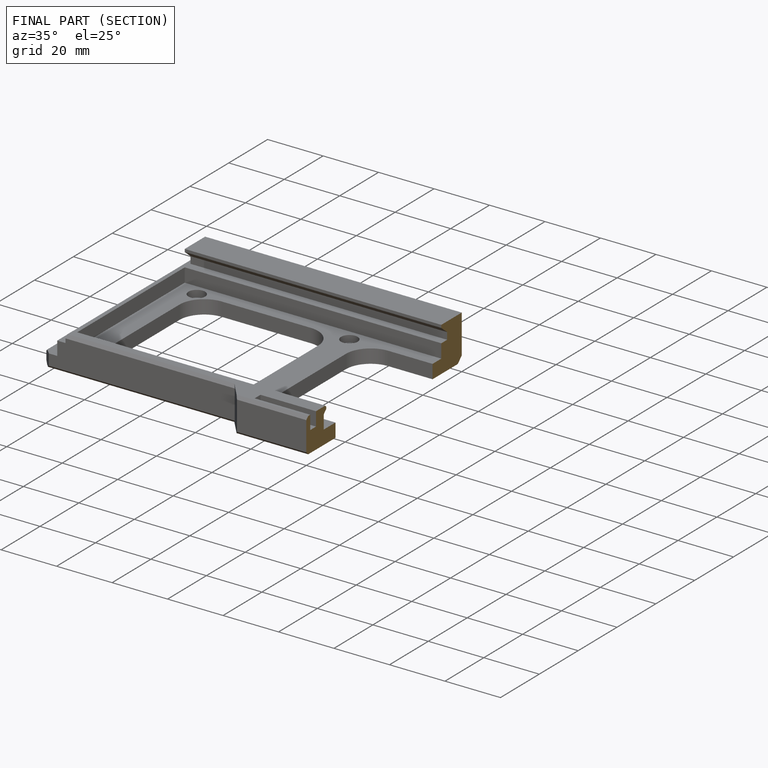
[diagram: finished part — half-section view (interior)]
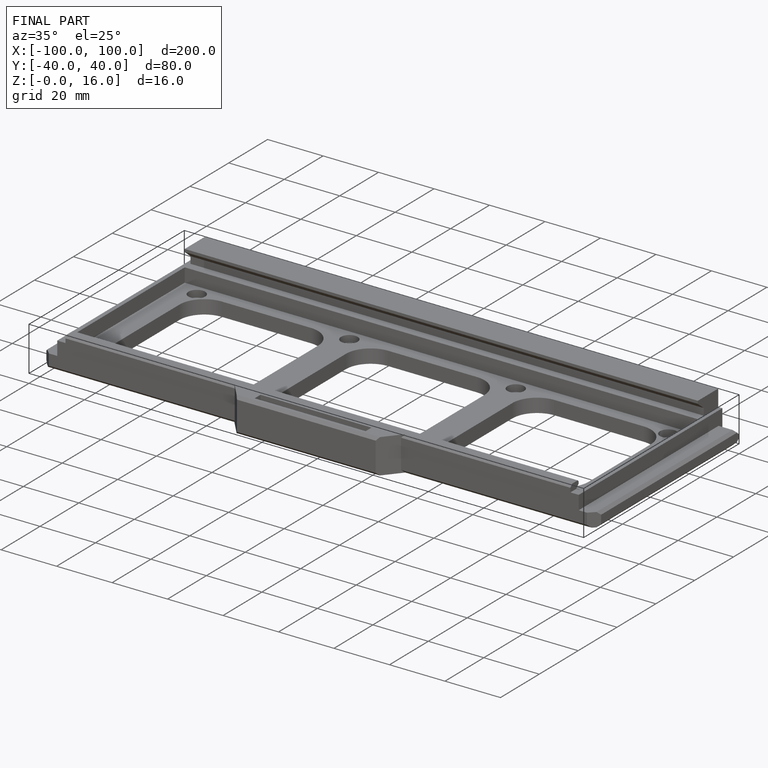
[diagram: finished part — iso view with bounding-box wireframe]
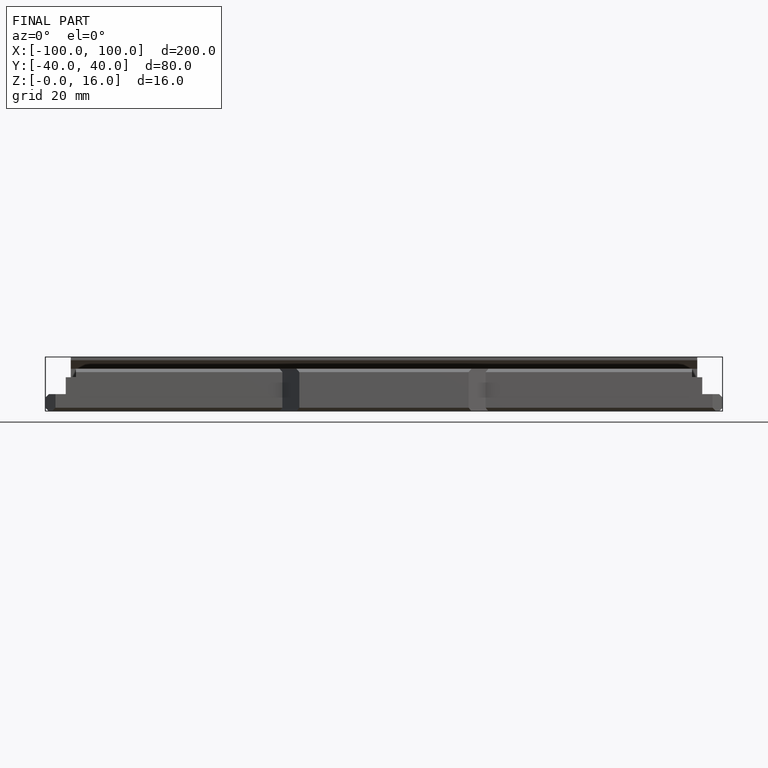
[diagram: finished part — front view with bounding-box wireframe]
